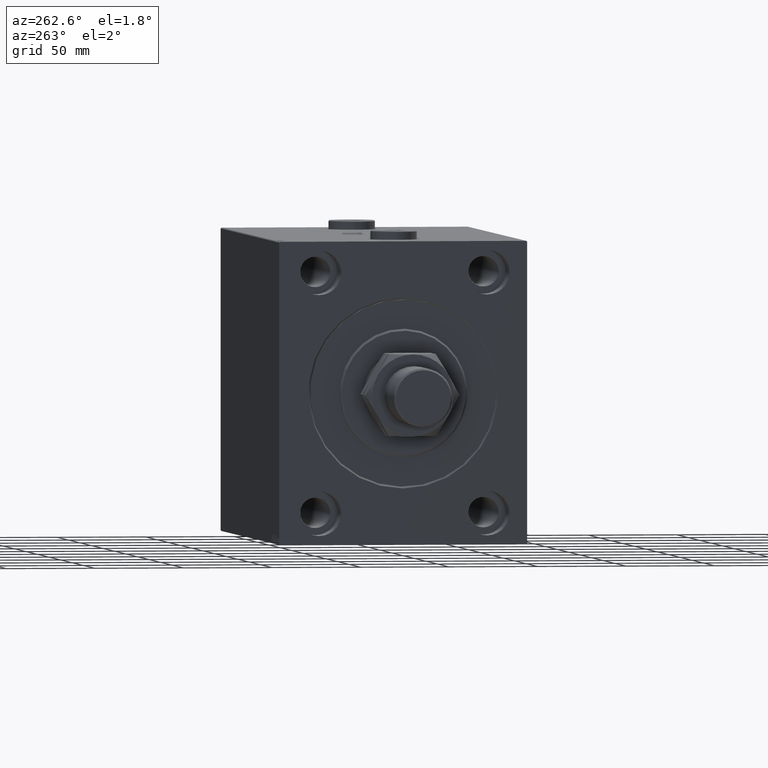
[diagram: clean part render]
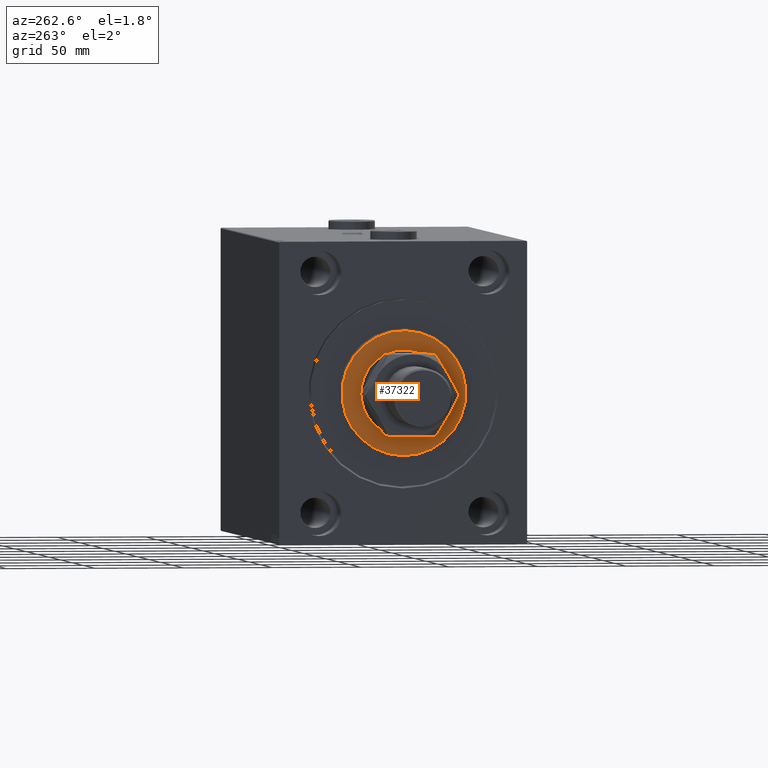
[diagram: same view with one face highlighted and labeled with its STEP entity id]
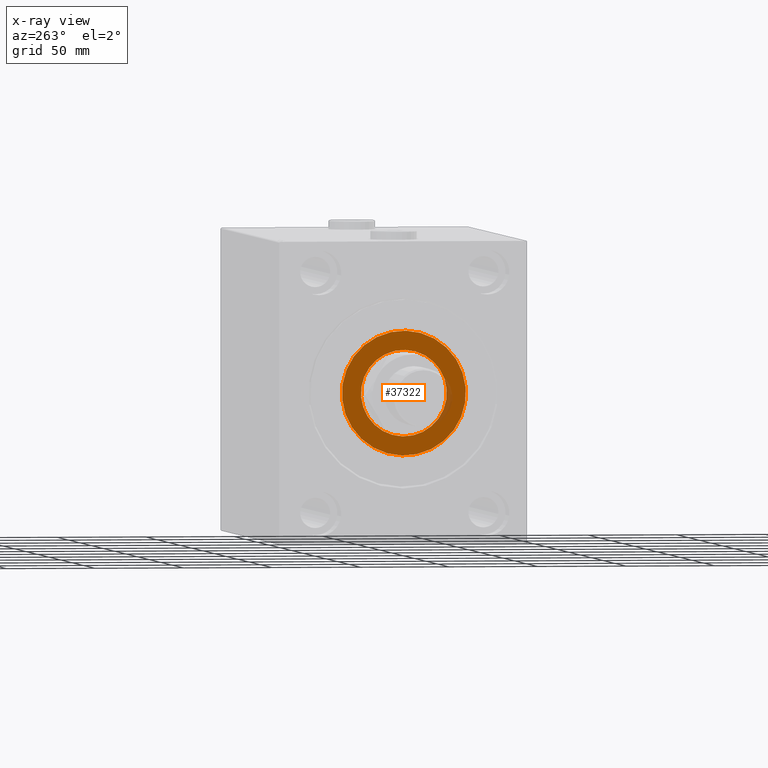
[diagram: x-ray of the same camera — body ghosted, the highlighted face saturated]
A machine part, auxiliary view. The second image highlights one B-rep face of the part: STEP entity #37322.
The next image is the same camera in x-ray: the body ghosted, the highlighted face saturated — about 4% of this face is hidden behind the body in this view.
In plain terms, the highlighted planar face has unit normal (-1, 0, 0).
Its self-contained STEP definition (entity closure, byte-faithful):
#2313 = DIRECTION ( 'NONE',  ( 0.000000000000000000, 0.000000000000000000, -1.000000000000000000 ) ) ;
#4929 = AXIS2_PLACEMENT_3D ( 'NONE', #46790, #21593, #22057 ) ;
#5709 = EDGE_CURVE ( 'NONE', #29242, #13204, #39511, .T. ) ;
#6218 = EDGE_LOOP ( 'NONE', ( #13760, #28512 ) ) ;
#6415 = CIRCLE ( 'NONE', #4929, 24.25000000000000000 ) ;
#7677 = AXIS2_PLACEMENT_3D ( 'NONE', #35560, #17506, #2313 ) ;
#8969 = AXIS2_PLACEMENT_3D ( 'NONE', #46167, #39030, #21441 ) ;
#11328 = AXIS2_PLACEMENT_3D ( 'NONE', #45528, #21026, #42880 ) ;
#13204 = VERTEX_POINT ( 'NONE', #44830 ) ;
#13760 = ORIENTED_EDGE ( 'NONE', *, *, #22583, .T. ) ;
#13900 = AXIS2_PLACEMENT_3D ( 'NONE', #34602, #27223, #31028 ) ;
#14069 = CARTESIAN_POINT ( 'NONE',  ( 3.000000000000000000, 0.000000000000000000, 24.25000000000000000 ) ) ;
#15889 = EDGE_CURVE ( 'NONE', #21763, #18974, #46146, .T. ) ;
#17506 = DIRECTION ( 'NONE',  ( 1.000000000000000000, -0.000000000000000000, 0.000000000000000000 ) ) ;
#18875 = CARTESIAN_POINT ( 'NONE',  ( 3.000000000000000000, 2.969768487932331287E-15, -24.25000000000000000 ) ) ;
#18974 = VERTEX_POINT ( 'NONE', #18875 ) ;
#19880 = FACE_BOUND ( 'NONE', #24387, .T. ) ;
#21026 = DIRECTION ( 'NONE',  ( 1.000000000000000000, -0.000000000000000000, 0.000000000000000000 ) ) ;
#21441 = DIRECTION ( 'NONE',  ( 0.000000000000000000, 0.000000000000000000, -1.000000000000000000 ) ) ;
#21593 = DIRECTION ( 'NONE',  ( -1.000000000000000000, 0.000000000000000000, -0.000000000000000000 ) ) ;
#21763 = VERTEX_POINT ( 'NONE', #14069 ) ;
#22057 = DIRECTION ( 'NONE',  ( 0.000000000000000000, 0.000000000000000000, -1.000000000000000000 ) ) ;
#22583 = EDGE_CURVE ( 'NONE', #13204, #29242, #39377, .T. ) ;
#24387 = EDGE_LOOP ( 'NONE', ( #25238, #45263 ) ) ;
#25238 = ORIENTED_EDGE ( 'NONE', *, *, #15889, .T. ) ;
#27223 = DIRECTION ( 'NONE',  ( 1.000000000000000000, -0.000000000000000000, 0.000000000000000000 ) ) ;
#28512 = ORIENTED_EDGE ( 'NONE', *, *, #5709, .T. ) ;
#29242 = VERTEX_POINT ( 'NONE', #29952 ) ;
#29952 = CARTESIAN_POINT ( 'NONE',  ( 3.000000000000000000, 4.347496136973104859E-15, -35.00000000000002842 ) ) ;
#31028 = DIRECTION ( 'NONE',  ( 0.000000000000000000, 0.000000000000000000, -1.000000000000000000 ) ) ;
#34602 = CARTESIAN_POINT ( 'NONE',  ( 3.000000000000000000, 0.000000000000000000, 0.000000000000000000 ) ) ;
#35560 = CARTESIAN_POINT ( 'NONE',  ( 3.000000000000000000, 0.000000000000000000, 0.000000000000000000 ) ) ;
#37322 = ADVANCED_FACE ( 'NONE', ( #37924, #19880 ), #45308, .T. ) ;
#37924 = FACE_OUTER_BOUND ( 'NONE', #6218, .T. ) ;
#39030 = DIRECTION ( 'NONE',  ( -1.000000000000000000, 0.000000000000000000, -0.000000000000000000 ) ) ;
#39377 = CIRCLE ( 'NONE', #11328, 35.00000000000002842 ) ;
#39511 = CIRCLE ( 'NONE', #7677, 35.00000000000002842 ) ;
#42880 = DIRECTION ( 'NONE',  ( 0.000000000000000000, 0.000000000000000000, -1.000000000000000000 ) ) ;
#44808 = EDGE_CURVE ( 'NONE', #18974, #21763, #6415, .T. ) ;
#44830 = CARTESIAN_POINT ( 'NONE',  ( 3.000000000000000000, 0.000000000000000000, 35.00000000000002842 ) ) ;
#45263 = ORIENTED_EDGE ( 'NONE', *, *, #44808, .T. ) ;
#45308 = PLANE ( 'NONE',  #13900 ) ;
#45528 = CARTESIAN_POINT ( 'NONE',  ( 3.000000000000000000, 0.000000000000000000, 0.000000000000000000 ) ) ;
#46146 = CIRCLE ( 'NONE', #8969, 24.25000000000000000 ) ;
#46167 = CARTESIAN_POINT ( 'NONE',  ( 3.000000000000000000, 0.000000000000000000, 0.000000000000000000 ) ) ;
#46790 = CARTESIAN_POINT ( 'NONE',  ( 3.000000000000000000, 0.000000000000000000, 0.000000000000000000 ) ) ;